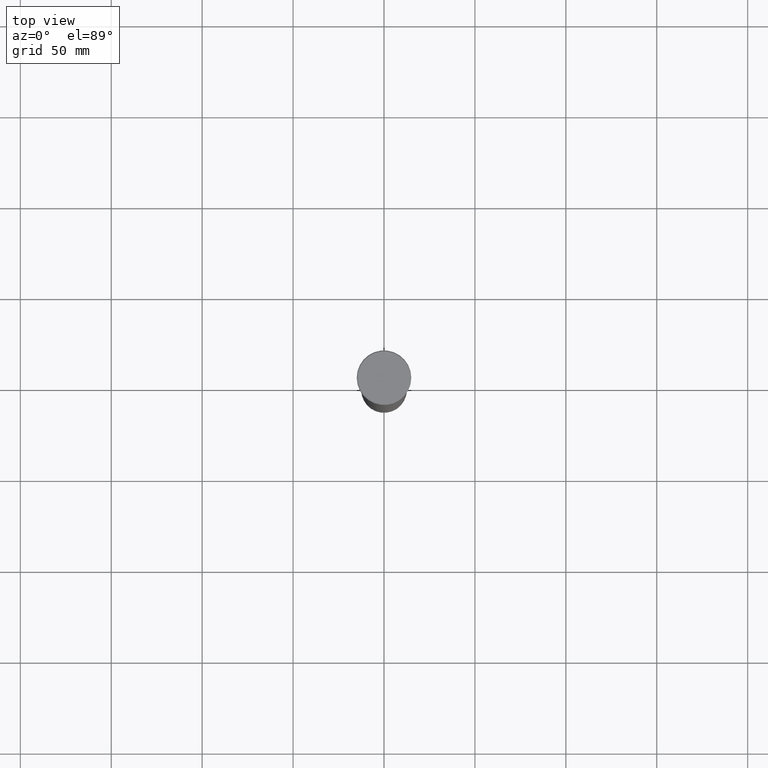
[diagram: clean part render]
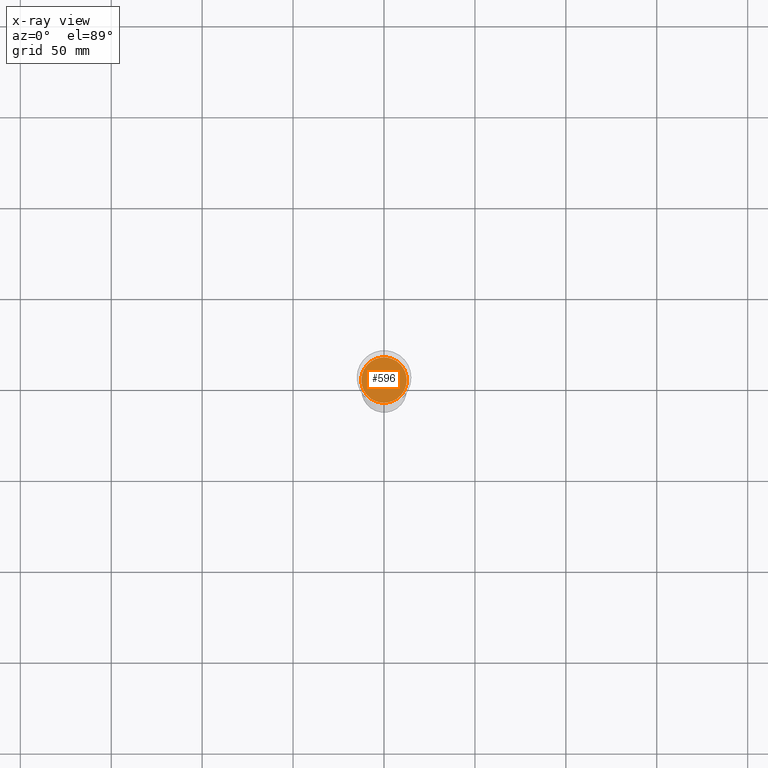
[diagram: x-ray — body ghosted, one internal face saturated and labeled with its STEP entity id]
A machine part, top view, then the same camera in x-ray: the body is ghosted and one INTERNAL B-rep face — a face not visible from any outside direction — is saturated and labeled: STEP entity #596.
In plain terms, the highlighted planar face has unit normal (0, 0, -1).
Its self-contained STEP definition (entity closure, byte-faithful):
#16 = DIRECTION ( 'NONE',  ( 1.000000000000000000, 0.000000000000000000, 0.000000000000000000 ) ) ;
#59 = FACE_OUTER_BOUND ( 'NONE', #333, .T. ) ;
#65 = AXIS2_PLACEMENT_3D ( 'NONE', #152, #472, #316 ) ;
#103 = VERTEX_POINT ( 'NONE', #166 ) ;
#140 = ORIENTED_EDGE ( 'NONE', *, *, #288, .T. ) ;
#152 = CARTESIAN_POINT ( 'NONE',  ( 0.000000000000000000, 3.469446951953614189E-15, -80.00000000000000000 ) ) ;
#163 = AXIS2_PLACEMENT_3D ( 'NONE', #347, #899, #667 ) ;
#166 = CARTESIAN_POINT ( 'NONE',  ( -12.50000000000000000, 1.530808498934191521E-15, -80.00000000000000000 ) ) ;
#171 = CARTESIAN_POINT ( 'NONE',  ( 0.000000000000000000, 0.000000000000000000, -80.00000000000000000 ) ) ;
#288 = EDGE_CURVE ( 'NONE', #1047, #103, #543, .T. ) ;
#316 = DIRECTION ( 'NONE',  ( -1.000000000000000000, 0.000000000000000000, -0.000000000000000000 ) ) ;
#333 = EDGE_LOOP ( 'NONE', ( #140, #1030 ) ) ;
#347 = CARTESIAN_POINT ( 'NONE',  ( 0.000000000000000000, 0.000000000000000000, -80.00000000000000000 ) ) ;
#370 = CIRCLE ( 'NONE', #163, 12.50000000000000000 ) ;
#378 = EDGE_CURVE ( 'NONE', #103, #1047, #370, .T. ) ;
#398 = PLANE ( 'NONE',  #65 ) ;
#472 = DIRECTION ( 'NONE',  ( 0.000000000000000000, 0.000000000000000000, -1.000000000000000000 ) ) ;
#543 = CIRCLE ( 'NONE', #674, 12.50000000000000000 ) ;
#596 = ADVANCED_FACE ( 'NONE', ( #59 ), #398, .F. ) ;
#667 = DIRECTION ( 'NONE',  ( 1.000000000000000000, 0.000000000000000000, 0.000000000000000000 ) ) ;
#674 = AXIS2_PLACEMENT_3D ( 'NONE', #171, #743, #16 ) ;
#698 = CARTESIAN_POINT ( 'NONE',  ( 12.50000000000000000, 0.000000000000000000, -80.00000000000000000 ) ) ;
#743 = DIRECTION ( 'NONE',  ( -0.000000000000000000, -0.000000000000000000, 1.000000000000000000 ) ) ;
#899 = DIRECTION ( 'NONE',  ( -0.000000000000000000, -0.000000000000000000, 1.000000000000000000 ) ) ;
#1030 = ORIENTED_EDGE ( 'NONE', *, *, #378, .T. ) ;
#1047 = VERTEX_POINT ( 'NONE', #698 ) ;